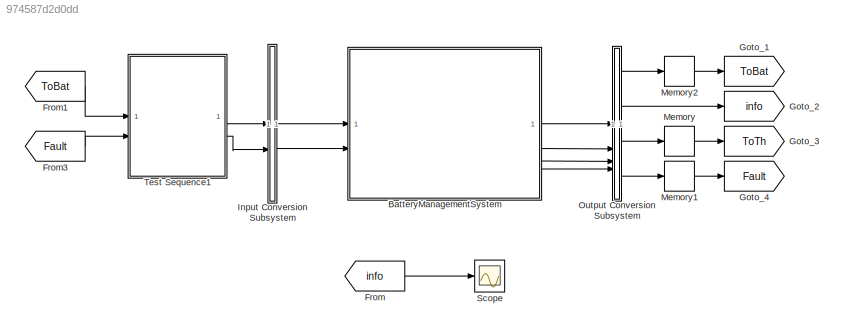
MODEL slx_974587d2d0dd
KIND model
CONFIG AbsTol = auto
CONFIG EnableMultiTasking = off
CONFIG FixedStep = auto
CONFIG MaxStep = auto
CONFIG MinStep = auto
CONFIG PreLoadFcn = BMSTestHarnessParams;
CONFIG RelTol = 1e-3
CONFIG SampleTimeConstraint = Unconstrained
CONFIG SolverName = VariableStepAuto
CONFIG StartTime = 0.0
CONFIG StopTime = 20
WORKSPACE source: mxarray member
WORKSPACE Cellvolt: Simulink.Parameter (value not decoded)
WORKSPACE ModuleTemp: Simulink.Parameter (value not decoded)
WORKSPACE ParVolt: Simulink.Parameter (value not decoded)
WORKSPACE SoC: Simulink.Parameter (value not decoded)
BLOCK [SubSystem] BatteryManagementSystem
  ReferencedSubsystem = BMS
BLOCK [From] From
  GotoTag = info
BLOCK [From] From1
  GotoTag = ToBat
BLOCK [From] From3
  GotoTag = Fault
BLOCK [Goto] Goto_1
  GotoTag = ToBat
BLOCK [Goto] Goto_2
  GotoTag = info
BLOCK [Goto] Goto_3
  GotoTag = ToTh
BLOCK [Goto] Goto_4
  GotoTag = Fault
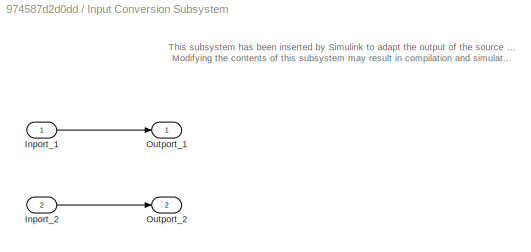
BLOCK [SubSystem] Input Conversion Subsystem
  AttributesFormatString = %<Description>
  Description = Signal spec.\nand routing
  Permissions = ReadOnly
  PermitHierarchicalResolution = ExplicitOnly
  Tag = __SLT_ICS__
  TreatAsGroupedWhenPropagatingVariantConditions = off
  UserDataPersistent = on
BLOCK [Inport] Input Conversion Subsystem/Inport_1
BLOCK [Inport] Input Conversion Subsystem/Inport_2
  Port = 2
BLOCK [Outport] Input Conversion Subsystem/Outport_1
BLOCK [Outport] Input Conversion Subsystem/Outport_2
  Port = 2
BLOCK [Memory] Memory
BLOCK [Memory] Memory1
BLOCK [Memory] Memory2
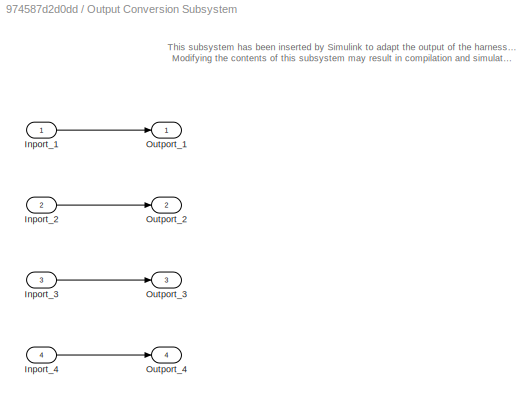
BLOCK [SubSystem] Output Conversion Subsystem
  AttributesFormatString = %<Description>
  Description = Signal spec.\nand routing
  Permissions = ReadOnly
  PermitHierarchicalResolution = ExplicitOnly
  Tag = __SLT_OCS__
  TreatAsGroupedWhenPropagatingVariantConditions = off
  UserDataPersistent = on
BLOCK [Inport] Output Conversion Subsystem/Inport_1
BLOCK [Inport] Output Conversion Subsystem/Inport_2
  Port = 2
BLOCK [Inport] Output Conversion Subsystem/Inport_3
  Port = 3
BLOCK [Inport] Output Conversion Subsystem/Inport_4
  Port = 4
BLOCK [Outport] Output Conversion Subsystem/Outport_1
BLOCK [Outport] Output Conversion Subsystem/Outport_2
  Port = 2
BLOCK [Outport] Output Conversion Subsystem/Outport_3
  Port = 3
BLOCK [Outport] Output Conversion Subsystem/Outport_4
  Port = 4
BLOCK [Scope] Scope
  Floating = off
  NumInputPorts = 1
  ScopeSpecificationString = Simulink.scopes.TimeScopeBlockCfg('CurrentConfiguration', extmgr.ConfigurationSet(extmgr.Configuration('Core','General UI',true),extmgr.Configuration('Core','Source UI',true),extmgr.Configuration('Sources','WiredSimulink',true),extmgr.Configuration('Visuals','Time Domain',true,'SerializedDisplays',{struct('MinYLimReal','-325.00000','MaxYLimReal','525.00000','YLabelReal','','MinYLimMag',' 0.00000',...<+4185ch>
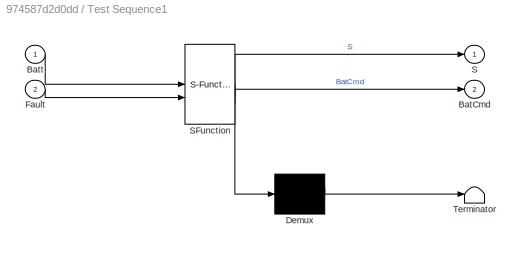
BLOCK [SubSystem] Test Sequence1
  ErrorFcn = Stateflow.Translate.translate
  PermitHierarchicalResolution = ExplicitOnly
  SFBlockType = Test Sequence
  ShowPortLabels = none
  TreatAsAtomicUnit = on
BLOCK [Demux] Test Sequence1/ Demux 
  Outputs = 1
BLOCK [S-Function] Test Sequence1/ SFunction 
  EnableBusSupport = on
  FunctionName = sf_sfun
  Parameters = 1,Cellvolt,ModuleTemp,ParVolt,SoC
  PortCounts = [2 3]
  SFcnIsStateOwnerBlock = off
  SFunctionDeploymentMode = off
  Tag = Stateflow S-Function 1
BLOCK [Terminator] Test Sequence1/ Terminator 
BLOCK [Outport] Test Sequence1/BatCmd
  Port = 2
BLOCK [Inport] Test Sequence1/Batt
BLOCK [Inport] Test Sequence1/Fault
  Port = 2
BLOCK [Outport] Test Sequence1/S
ANNOTATION Input Conversion Subsystem: This subsystem has been inserted by Simulink to adapt the output of the source blocks to the interface required by the harnessed component. Modifying the contents of this subsystem may result in compilation and simulation failure.
ANNOTATION Output Conversion Subsystem: This subsystem has been inserted by Simulink to adapt the output of the harnessed component to the interface required by the sink blocks. Modifying the contents of this subsystem may result in compilation and simulation failure.
LINE BatteryManagementSystem:1 -> Output Conversion Subsystem:1
LINE BatteryManagementSystem:2 -> Output Conversion Subsystem:2
LINE BatteryManagementSystem:3 -> Output Conversion Subsystem:3
LINE BatteryManagementSystem:4 -> Output Conversion Subsystem:4
LINE From1:1 -> Test Sequence1:1
LINE From3:1 -> Test Sequence1:2
LINE From:1 -> Scope:1
LINE Input Conversion Subsystem/Inport_1:1 -> Input Conversion Subsystem/Outport_1:1
LINE Input Conversion Subsystem/Inport_2:1 -> Input Conversion Subsystem/Outport_2:1
LINE Input Conversion Subsystem:1 -> BatteryManagementSystem:1
LINE Input Conversion Subsystem:2 -> BatteryManagementSystem:2
LINE Memory1:1 -> Goto_4:1
LINE Memory2:1 -> Goto_1:1
LINE Memory:1 -> Goto_3:1
LINE Output Conversion Subsystem/Inport_1:1 -> Output Conversion Subsystem/Outport_1:1
LINE Output Conversion Subsystem/Inport_2:1 -> Output Conversion Subsystem/Outport_2:1
LINE Output Conversion Subsystem/Inport_3:1 -> Output Conversion Subsystem/Outport_3:1
LINE Output Conversion Subsystem/Inport_4:1 -> Output Conversion Subsystem/Outport_4:1
LINE Output Conversion Subsystem:1 -> Memory2:1
LINE Output Conversion Subsystem:2 -> Goto_2:1
LINE Output Conversion Subsystem:3 -> Memory:1
LINE Output Conversion Subsystem:4 -> Memory1:1
LINE Test Sequence1:1 -> Input Conversion Subsystem:1
LINE Test Sequence1:2 -> Input Conversion Subsystem:2
CHART Test Sequence1 states=18 transitions=28
  STATE_LABEL 'Scenario_1'
  STATE_LABEL 'Initialize_battery\n\n%% Initialize data outputs.\nS.temp = 295*ModuleTemp;\nS.ParVolt = 4*ParVolt;\nS.Cellvolt = 44*Cellvolt;\nS.Current = 0;\nS.SoC = .75*SoC;\nBatCmd.BatCmd=1;\nBatCmd.Reset=0;'  <repeated x4 — deduplicated; at blocks: Test Sequence1>
  STATE_LABEL "Verify_batteryConnect\n\nverify(Batt.Relay.RelayPos >=1,'Battery Pos relay connected')\nverify(Batt.Relay.RelayNeg >=1,'Battery Pos relay connected')\nverify(abs(Batt.BatSt-1)<1E-6,'Battery status 1, in standby mode')"
  STATE_LABEL 'Battery_Discharge\nBatCmd.BatCmd=3;\n'
  STATE_LABEL "Verify_batteryDischarging\nverify(Batt.Relay.RelayDchg >=1,'Battery Pos relay connected')\nverify(abs(Batt.BatSt-3)<1E-6,'Battery status 3, in discharge mode')"
  STATE_LABEL 'Battery_Charging\nBatCmd.BatCmd=2;'
  STATE_LABEL "Verify_batteryCharging\nverify(Batt.Relay.RelayChg >=1,'Battery Pos relay connected')\nverify(abs(Batt.BatSt-2)<1E-6,'Battery status 2, in charge mode')"
  STATE_LABEL 'SoCmax_case\nS.SoC = .995*SoC;\n'
  STATE_LABEL "Verify_SoCmaxOp\nverify(Batt.Relay.RelayChg <=0,'Battery Pos relay connected')\nverify(abs(Batt.BatSt-1)<1E-6,'Battery status 1,  in standby mode ')"
  STATE_LABEL 'SoCmaxDeactivate\nS.SoC = .85*SoC;'
  STATE_LABEL "Verify_Charging\nverify(Batt.Relay.RelayChg >=1,'Battery Pos relay connected')\nverify(abs(Batt.BatSt-2)<1E-6,'Battery status 2, in charge mode')"
  STATE_LABEL '[\nafter(1,sec)\n]'
  STATE_LABEL '[\nafter(1,sec)\n]'
  STATE_LABEL '[\nafter(1,sec)\n]'
  STATE_LABEL '[\nafter(1,sec)\n]'
  STATE_LABEL '[\nafter(1,sec)\n]'
  STATE_LABEL "Verify_batteryConnect\n\nverify(Batt.Relay.RelayPos >=1,'Battery Pos relay connected')\nverify(Batt.Relay.RelayNeg >=1,'Battery Pos relay connected')\nverify(abs(Batt.BatSt-1)<1E-6,'Battery status 1, in standby mode')"
  STATE_LABEL 'Battery_Discharge\nBatCmd.BatCmd=3;\n'
  STATE_LABEL "Verify_batteryDischarging\nverify(Batt.Relay.RelayDchg >=1,'Battery Pos relay connected')\nverify(abs(Batt.BatSt-3)<1E-6,'Battery status 3, in discharge mode')"
  STATE_LABEL 'Battery_Charging\nBatCmd.BatCmd=2;'
  STATE_LABEL "Verify_batteryCharging\nverify(Batt.Relay.RelayChg >=1,'Battery Pos relay connected')\nverify(abs(Batt.BatSt-2)<1E-6,'Battery status 2, in charge mode')"
  STATE_LABEL 'SoCmax_case\nS.SoC = .995*SoC;\n'
  STATE_LABEL "Verify_SoCmaxOp\nverify(Batt.Relay.RelayChg <=0,'Battery Pos relay connected')\nverify(abs(Batt.BatSt-1)<1E-6,'Battery status 1,  in standby mode ')"
  STATE_LABEL 'SoCmaxDeactivate\nS.SoC = .85*SoC;'
  STATE_LABEL "Verify_Charging\nverify(Batt.Relay.RelayChg >=1,'Battery Pos relay connected')\nverify(abs(Batt.BatSt-2)<1E-6,'Battery status 2, in charge mode')"
  STATE_LABEL 'Scenario_2'
  STATE_LABEL 'DischargeMode_activate\nBatCmd.BatCmd=3;'
  STATE_LABEL 'Discharging_active\nS.Current = -30;'
  STATE_LABEL 'else'
  STATE_LABEL '[Batt.BatSt==1\n]'
  STATE_LABEL '[~in(Scenario_2.Initialize_battery.DischargeMode_activate)]'
  STATE_LABEL '[Batt.BatSt==3\n]'
  STATE_LABEL '[~in(Scenario_2.Initialize_battery.Discharging_active)]'
  STATE_LABEL '[~in(Scenario_2.Initialize_battery.else)]'
  STATE_LABEL 'DischargeFault_activate\nS.Current=-700'
  STATE_LABEL "DischargeFault_active\nverify(abs(Fault.Fault.FaultElec.Dchg -1)<1E-6,'Discharge Fault triggered')"
  STATE_LABEL '[\nafter(5,sec)\n]'
CHART  states=0 transitions=0
